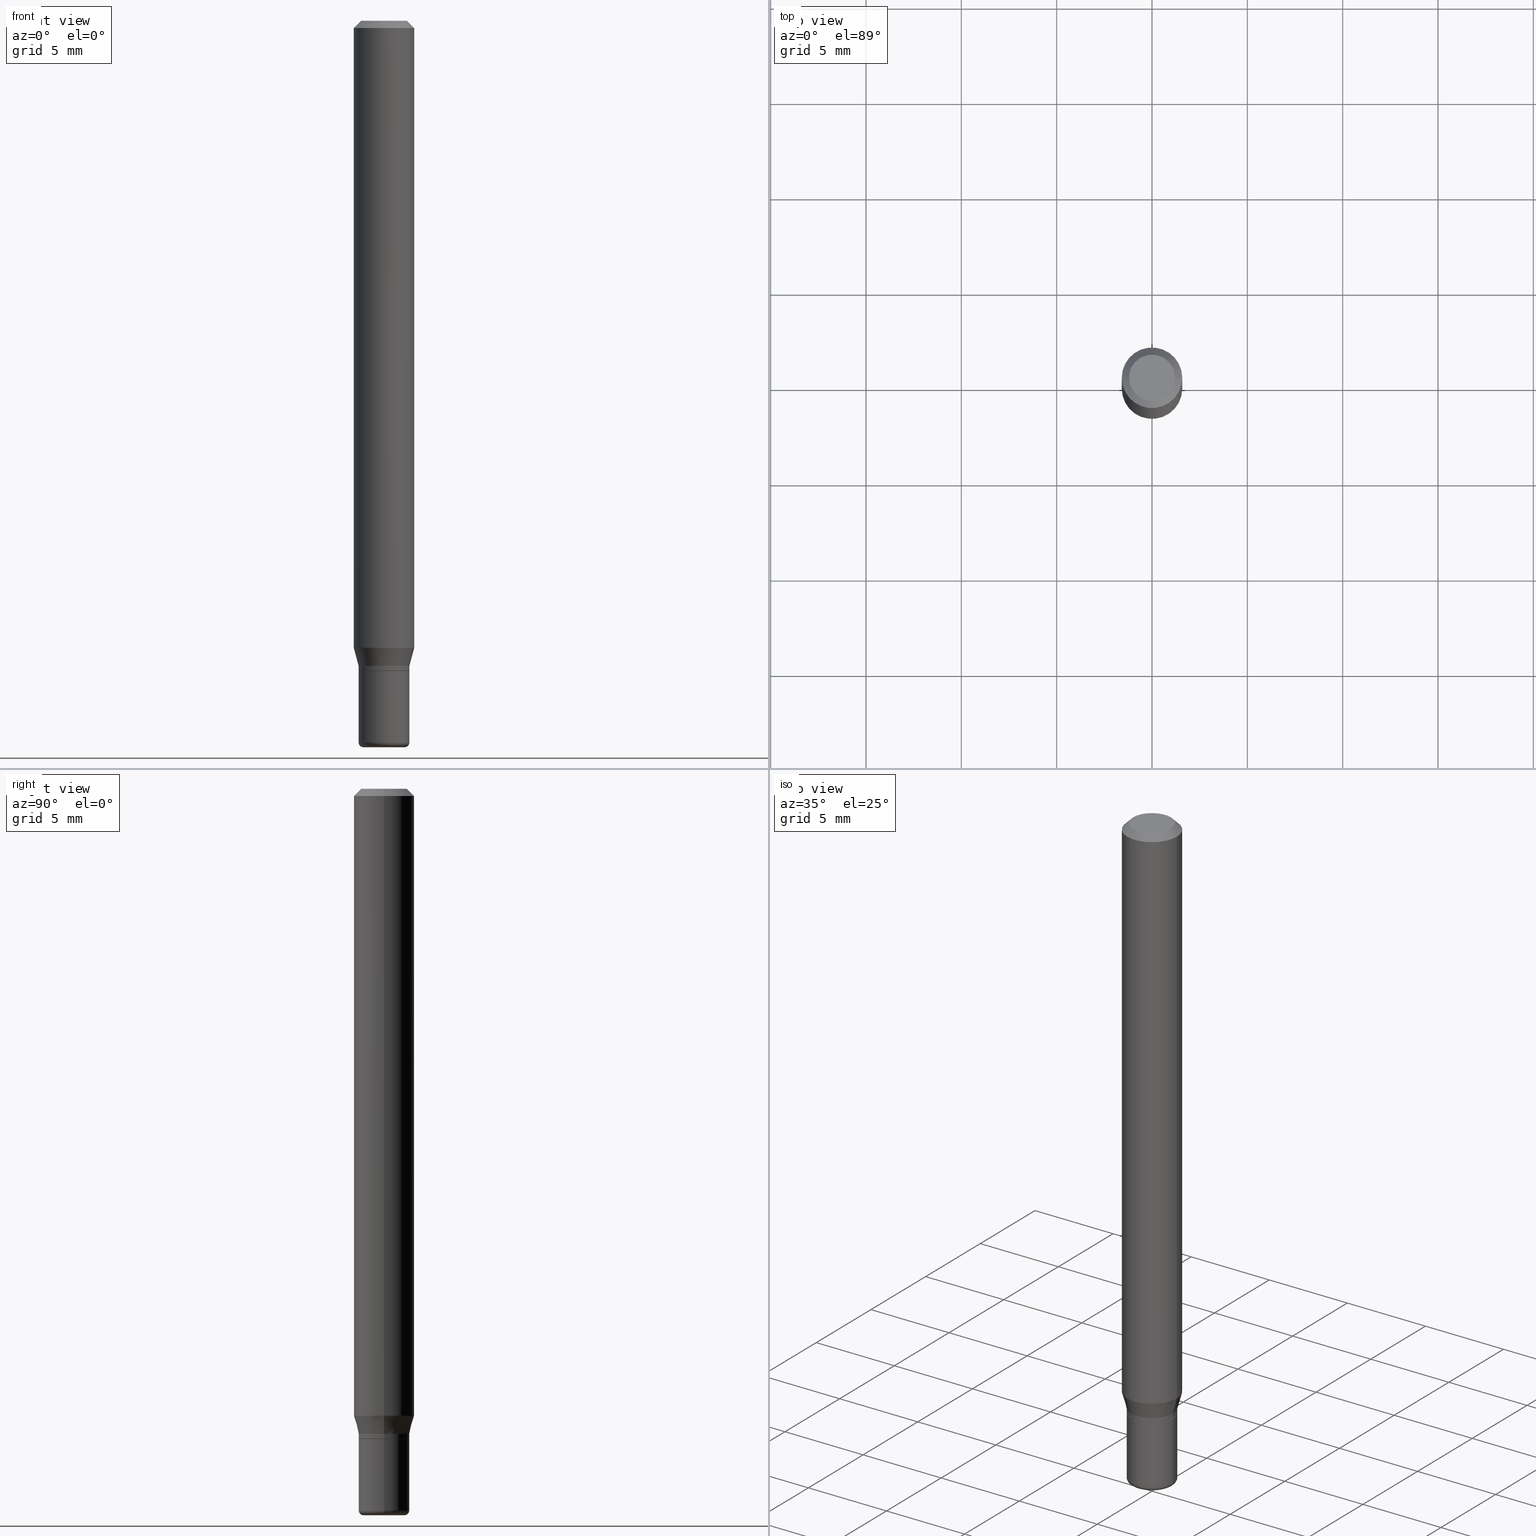
[diagram: canonical four-view strip — front | top / right | iso, engineering-drawing reading convention]
A machine part, canonical four-view strip (front | top / right | iso — engineering-drawing reading convention). The complete STEP part file that produces these views, byte-faithful:
ISO-10303-21;
HEADER;
FILE_DESCRIPTION (( 'STEP AP203' ),
    '1' );
FILE_NAME ('08744.STEP',
    '2024-02-29T20:45:33',
    ( '' ),
    ( '' ),
    'SwSTEP 2.0',
    'SolidWorks 2023',
    '' );
FILE_SCHEMA (( 'CONFIG_CONTROL_DESIGN' ));
ENDSEC;

DATA;
#1 = DIRECTION ( 'NONE',  ( -2.445468806185136597E-29, 3.491481338843145583E-15, 1.000000000000000000 ) ) ;
#2 = CIRCLE ( 'NONE', #40, 0.06250000000000000000 ) ;
#3 = VECTOR ( 'NONE', #63, 39.37007874015748143 ) ;
#4 = PRODUCT_DEFINITION_FORMATION_WITH_SPECIFIED_SOURCE ( 'ANY', '', #58, .NOT_KNOWN. ) ;
#5 = ORIENTED_EDGE ( 'NONE', *, *, #65, .F. ) ;
#6 = DIRECTION ( 'NONE',  ( 1.000000000000000000, -6.982962677686257244E-15, 0.000000000000000000 ) ) ;
#7 = ORIENTED_EDGE ( 'NONE', *, *, #73, .F. ) ;
#8 = CARTESIAN_POINT ( 'NONE',  ( -0.06250000000000000000, -4.076260075986595677E-15, -1.294679491924311421 ) ) ;
#9 = CARTESIAN_POINT ( 'NONE',  ( 3.257364449838602072E-29, -4.650653143339070101E-15, -1.332000000000000073 ) ) ;
#10 = VERTEX_POINT ( 'NONE', #420 ) ;
#11 = DIRECTION ( 'NONE',  ( 1.000000000000000000, -6.982962677686265922E-15, 4.876176775795935232E-29 ) ) ;
#12 = CARTESIAN_POINT ( 'NONE',  ( 3.668203209277704895E-29, -5.237222008264718177E-15, -1.500000000000000222 ) ) ;
#13 = VERTEX_POINT ( 'NONE', #346 ) ;
#14 = LINE ( 'NONE', #349, #327 ) ;
#15 = ORIENTED_EDGE ( 'NONE', *, *, #89, .T. ) ;
#16 = ORIENTED_EDGE ( 'NONE', *, *, #83, .F. ) ;
#17 = DIRECTION ( 'NONE',  ( -0.7071067811865479058, 2.468850131082261005E-15, -0.7071067811865471286 ) ) ;
#18 = CIRCLE ( 'NONE', #483, 0.05249999999999997030 ) ;
#19 = AXIS2_PLACEMENT_3D ( 'NONE', #323, #359, #239 ) ;
#20 = ORIENTED_EDGE ( 'NONE', *, *, #29, .F. ) ;
#21 =( GEOMETRIC_REPRESENTATION_CONTEXT ( 3 ) GLOBAL_UNCERTAINTY_ASSIGNED_CONTEXT ( ( #174 ) ) GLOBAL_UNIT_ASSIGNED_CONTEXT ( ( #105, #501, #100 ) ) REPRESENTATION_CONTEXT ( 'NONE', 'WORKASPACE' ) );
#22 = ORIENTED_EDGE ( 'NONE', *, *, #238, .T. ) ;
#23 = CARTESIAN_POINT ( 'NONE',  ( 0.000000000000000000, 0.000000000000000000, 0.000000000000000000 ) ) ;
#24 = DIRECTION ( 'NONE',  ( 1.000000000000000000, -6.982962677686266711E-15, 4.876176775795935793E-29 ) ) ;
#25 = EDGE_CURVE ( 'NONE', #369, #468, #230, .T. ) ;
#26 = DIRECTION ( 'NONE',  ( 1.000000000000000000, -6.982962677686261977E-15, 0.000000000000000000 ) ) ;
#27 = DIRECTION ( 'NONE',  ( 1.000000000000000000, -6.982962677686266711E-15, 4.852736867747365086E-29 ) ) ;
#28 = AXIS2_PLACEMENT_3D ( 'NONE', #341, #223, #6 ) ;
#29 = EDGE_CURVE ( 'NONE', #329, #210, #113, .T. ) ;
#30 = DIRECTION ( 'NONE',  ( -2.445468806185136597E-29, 3.491481338843145583E-15, 1.000000000000000000 ) ) ;
#31 = PERSON_AND_ORGANIZATION ( #59, #401 ) ;
#32 = DIRECTION ( 'NONE',  ( 1.000000000000000000, -6.982962677686269077E-15, 0.000000000000000000 ) ) ;
#33 = ORIENTED_EDGE ( 'NONE', *, *, #504, .T. ) ;
#34 = DIRECTION ( 'NONE',  ( 1.000000000000000000, -6.982962677686276966E-15, 0.000000000000000000 ) ) ;
#35 = DIRECTION ( 'NONE',  ( -2.445468806185136597E-29, 3.491481338843145583E-15, 1.000000000000000000 ) ) ;
#36 = DATE_AND_TIME ( #119, #209 ) ;
#37 = EDGE_CURVE ( 'NONE', #287, #166, #2, .T. ) ;
#38 = CYLINDRICAL_SURFACE ( 'NONE', #309, 0.05249999999999997030 ) ;
#39 = DIRECTION ( 'NONE',  ( 1.000000000000000000, -6.982962677686266711E-15, 4.876176775795935793E-29 ) ) ;
#40 = AXIS2_PLACEMENT_3D ( 'NONE', #370, #143, #44 ) ;
#41 = AXIS2_PLACEMENT_3D ( 'NONE', #195, #30, #312 ) ;
#42 = ORIENTED_EDGE ( 'NONE', *, *, #512, .F. ) ;
#43 = EDGE_LOOP ( 'NONE', ( #248, #15, #103, #447 ) ) ;
#44 = DIRECTION ( 'NONE',  ( 1.000000000000000000, -6.982962677686266711E-15, 0.000000000000000000 ) ) ;
#45 = EDGE_LOOP ( 'NONE', ( #22, #125 ) ) ;
#46 = PLANE ( 'NONE',  #286 ) ;
#47 = AXIS2_PLACEMENT_3D ( 'NONE', #101, #60, #249 ) ;
#48 = DIRECTION ( 'NONE',  ( -1.000000000000000000, 6.982962677686266711E-15, 0.000000000000000000 ) ) ;
#49 = AXIS2_PLACEMENT_3D ( 'NONE', #122, #290, #442 ) ;
#50 = ORIENTED_EDGE ( 'NONE', *, *, #165, .T. ) ;
#51 = APPROVAL_ROLE ( '' ) ;
#52 = EDGE_CURVE ( 'NONE', #244, #250, #297, .T. ) ;
#53 = LINE ( 'NONE', #487, #317 ) ;
#54 = ORIENTED_EDGE ( 'NONE', *, *, #123, .T. ) ;
#55 = ORIENTED_EDGE ( 'NONE', *, *, #61, .F. ) ;
#56 = ORIENTED_EDGE ( 'NONE', *, *, #52, .F. ) ;
#57 = PERSON_AND_ORGANIZATION_ROLE ( 'creator' ) ;
#58 = PRODUCT ( '08744', '08744', '', ( #497 ) ) ;
#59 = PERSON ( 'UNSPECIFIED', 'UNSPECIFIED', 'UNSPECIFIED', ('UNSPECIFIED'), ('UNSPECIFIED'), ('UNSPECIFIED') ) ;
#60 = DIRECTION ( 'NONE',  ( -2.445468806185136597E-29, 3.491481338843145583E-15, 1.000000000000000000 ) ) ;
#61 = EDGE_CURVE ( 'NONE', #93, #219, #494, .T. ) ;
#62 = TOROIDAL_SURFACE ( 'NONE', #433, 0.04249999999999998918, 0.009999999999999953371 ) ;
#63 = DIRECTION ( 'NONE',  ( 0.7071067811865479058, -7.319954787623257623E-15, -0.7071067811865471286 ) ) ;
#64 = ORIENTED_EDGE ( 'NONE', *, *, #441, .F. ) ;
#65 = EDGE_CURVE ( 'NONE', #411, #334, #326, .T. ) ;
#66 = CARTESIAN_POINT ( 'NONE',  ( 0.04249999999999998918, -5.533997922066385616E-15, -1.500000000000000222 ) ) ;
#67 = COORDINATED_UNIVERSAL_TIME_OFFSET ( 5, 0, .BEHIND. ) ;
#68 = CARTESIAN_POINT ( 'NONE',  ( 0.05249999999999999806, -5.053919237975452413E-15, -1.342500000000000249 ) ) ;
#69 = DIRECTION ( 'NONE',  ( 1.000000000000000000, -6.982962677686262766E-15, 0.000000000000000000 ) ) ;
#70 = AXIS2_PLACEMENT_3D ( 'NONE', #12, #461, #220 ) ;
#71 = AXIS2_PLACEMENT_3D ( 'NONE', #298, #379, #139 ) ;
#72 = CARTESIAN_POINT ( 'NONE',  ( -0.04249999999999998918, -4.882256802084455647E-15, -1.500000000000000222 ) ) ;
#73 = EDGE_CURVE ( 'NONE', #188, #258, #506, .T. ) ;
#74 = CYLINDRICAL_SURFACE ( 'NONE', #465, 0.06250000000000000000 ) ;
#75 = DIRECTION ( 'NONE',  ( -2.445468806185136877E-29, 3.491481338843145188E-15, 1.000000000000000000 ) ) ;
#76 = COORDINATED_UNIVERSAL_TIME_OFFSET ( 5, 0, .BEHIND. ) ;
#77 = AXIS2_PLACEMENT_3D ( 'NONE', #475, #1, #34 ) ;
#78 = CC_DESIGN_APPROVAL ( #360, ( #4 ) ) ;
#79 = ADVANCED_FACE ( 'NONE', ( #129 ), #407, .T. ) ;
#80 = DIRECTION ( 'NONE',  ( 2.445468806185136597E-29, -3.491481338843145583E-15, -1.000000000000000000 ) ) ;
#81 = FACE_OUTER_BOUND ( 'NONE', #324, .T. ) ;
#82 = EDGE_CURVE ( 'NONE', #93, #10, #180, .T. ) ;
#83 = EDGE_CURVE ( 'NONE', #13, #132, #221, .T. ) ;
#84 = AXIS2_PLACEMENT_3D ( 'NONE', #233, #157, #69 ) ;
#85 = LOCAL_TIME ( 15, 45, 33.00000000000000000, #311 ) ;
#86 = ORIENTED_EDGE ( 'NONE', *, *, #518, .T. ) ;
#87 = CARTESIAN_POINT ( 'NONE',  ( -0.05249999999999997030, 3.730349362740523866E-16, -2.582440922383824260E-30 ) ) ;
#88 = FACE_OUTER_BOUND ( 'NONE', #135, .T. ) ;
#89 = EDGE_CURVE ( 'NONE', #329, #244, #288, .T. ) ;
#90 = EDGE_LOOP ( 'NONE', ( #198, #445, #367, #452 ) ) ;
#91 = DIRECTION ( 'NONE',  ( 1.000000000000000000, -6.982962677686262766E-15, 0.000000000000000000 ) ) ;
#92 = APPLICATION_CONTEXT ( 'configuration controlled 3d designs of mechanical parts and assemblies' ) ;
#93 = VERTEX_POINT ( 'NONE', #245 ) ;
#94 = DATE_TIME_ROLE ( 'creation_date' ) ;
#95 = DIMENSIONAL_EXPONENTS ( 1.000000000000000000, 0.000000000000000000, 0.000000000000000000, 0.000000000000000000, 0.000000000000000000, 0.000000000000000000, 0.000000000000000000 ) ;
#96 = AXIS2_PLACEMENT_3D ( 'NONE', #141, #454, #459 ) ;
#97 = CARTESIAN_POINT ( 'NONE',  ( 3.283041872303546419E-29, -4.687313697396923253E-15, -1.342500000000000249 ) ) ;
#98 = CIRCLE ( 'NONE', #84, 0.06250000000000000000 ) ;
#99 = EDGE_LOOP ( 'NONE', ( #182, #130, #266, #55 ) ) ;
#100 =( NAMED_UNIT ( * ) SI_UNIT ( $, .STERADIAN. ) SOLID_ANGLE_UNIT ( ) );
#101 = CARTESIAN_POINT ( 'NONE',  ( 3.283041872303546419E-29, -4.687313697396923253E-15, -1.342500000000000249 ) ) ;
#102 = ORIENTED_EDGE ( 'NONE', *, *, #165, .F. ) ;
#103 = ORIENTED_EDGE ( 'NONE', *, *, #389, .F. ) ;
#104 = CARTESIAN_POINT ( 'NONE',  ( 3.668203209277632395E-31, -5.237222008264614861E-17, -0.01499999999999970281 ) ) ;
#105 =( CONVERSION_BASED_UNIT ( 'INCH', #458 ) LENGTH_UNIT ( ) NAMED_UNIT ( #95 ) );
#106 = FACE_OUTER_BOUND ( 'NONE', #415, .T. ) ;
#107 = VECTOR ( 'NONE', #484, 39.37007874015748143 ) ;
#108 = AXIS2_PLACEMENT_3D ( 'NONE', #390, #340, #26 ) ;
#109 = EDGE_CURVE ( 'NONE', #10, #93, #18, .T. ) ;
#110 = FACE_OUTER_BOUND ( 'NONE', #45, .T. ) ;
#111 = CARTESIAN_POINT ( 'NONE',  ( -6.680649051745406845E-45, 9.538196290434862081E-31, 2.731847993664263218E-16 ) ) ;
#112 = CARTESIAN_POINT ( 'NONE',  ( -0.05249999999999999806, -4.571775509862553934E-15, -1.342500000000000249 ) ) ;
#113 = CIRCLE ( 'NONE', #28, 0.05249999999999994255 ) ;
#114 = AXIS2_PLACEMENT_3D ( 'NONE', #265, #187, #350 ) ;
#115 = DIRECTION ( 'NONE',  ( 1.000000000000000000, -6.982962677686257244E-15, 4.883557194083109538E-29 ) ) ;
#116 = PERSON_AND_ORGANIZATION ( #59, #401 ) ;
#117 = CARTESIAN_POINT ( 'NONE',  ( 3.257364449838602072E-29, -4.650653143339070101E-15, -1.332000000000000073 ) ) ;
#118 = ADVANCED_FACE ( 'NONE', ( #211 ), #263, .T. ) ;
#119 = CALENDAR_DATE ( 2024, 29, 2 ) ;
#120 = DIRECTION ( 'NONE',  ( -2.445468806185136597E-29, 3.491481338843145583E-15, 1.000000000000000000 ) ) ;
#121 = VECTOR ( 'NONE', #470, 39.37007874015748143 ) ;
#122 = CARTESIAN_POINT ( 'NONE',  ( 3.257364449838602072E-29, -4.650653143339070101E-15, -1.332000000000000073 ) ) ;
#123 = EDGE_CURVE ( 'NONE', #334, #287, #53, .T. ) ;
#124 = CC_DESIGN_PERSON_AND_ORGANIZATION_ASSIGNMENT ( #201, #229, ( #142 ) ) ;
#125 = ORIENTED_EDGE ( 'NONE', *, *, #65, .T. ) ;
#126 = AXIS2_PLACEMENT_3D ( 'NONE', #466, #469, #194 ) ;
#127 = ORIENTED_EDGE ( 'NONE', *, *, #516, .F. ) ;
#128 = APPROVAL_PERSON_ORGANIZATION ( #278, #429, #193 ) ;
#129 = FACE_OUTER_BOUND ( 'NONE', #175, .T. ) ;
#130 = ORIENTED_EDGE ( 'NONE', *, *, #153, .T. ) ;
#131 = PLANE ( 'NONE',  #241 ) ;
#132 = VERTEX_POINT ( 'NONE', #292 ) ;
#133 = DIRECTION ( 'NONE',  ( -2.445468806185136597E-29, 3.491481338843145583E-15, 1.000000000000000000 ) ) ;
#134 = EDGE_CURVE ( 'NONE', #219, #369, #451, .T. ) ;
#135 = EDGE_LOOP ( 'NONE', ( #373, #413, #339, #328 ) ) ;
#136 = CYLINDRICAL_SURFACE ( 'NONE', #353, 0.05249999999999997030 ) ;
#137 = DIRECTION ( 'NONE',  ( 0.2588190451025217387, 1.565188264969619207E-15, 0.9659258262890679791 ) ) ;
#138 = ORIENTED_EDGE ( 'NONE', *, *, #61, .T. ) ;
#139 = DIRECTION ( 'NONE',  ( 1.000000000000000000, -6.982962677686266711E-15, 0.000000000000000000 ) ) ;
#140 = CC_DESIGN_PERSON_AND_ORGANIZATION_ASSIGNMENT ( #186, #308, ( #58 ) ) ;
#141 = CARTESIAN_POINT ( 'NONE',  ( -6.680649051745406845E-45, 9.538196290434862081E-31, 2.731847993664263218E-16 ) ) ;
#142 = SECURITY_CLASSIFICATION ( '', '', #397 ) ;
#143 = DIRECTION ( 'NONE',  ( -2.445468806185136597E-29, 3.491481338843145583E-15, 1.000000000000000000 ) ) ;
#144 = DATE_AND_TIME ( #347, #85 ) ;
#145 = DIRECTION ( 'NONE',  ( -0.2588190451025217387, 5.211531920934551042E-15, 0.9659258262890679791 ) ) ;
#146 =( LENGTH_UNIT ( ) NAMED_UNIT ( * ) SI_UNIT ( $, .METRE. ) );
#147 = CARTESIAN_POINT ( 'NONE',  ( 3.643748521215853910E-29, -5.202307194876288105E-15, -1.490000000000000213 ) ) ;
#148 = AXIS2_PLACEMENT_3D ( 'NONE', #9, #337, #172 ) ;
#149 = AXIS2_PLACEMENT_3D ( 'NONE', #235, #517, #162 ) ;
#150 = APPLICATION_PROTOCOL_DEFINITION ( 'international standard', 'config_control_design', 1994, #92 ) ;
#151 = ADVANCED_FACE ( 'NONE', ( #295 ), #169, .T. ) ;
#152 = DIRECTION ( 'NONE',  ( 1.000000000000000000, -6.982962677686261977E-15, 0.000000000000000000 ) ) ;
#153 = EDGE_CURVE ( 'NONE', #10, #313, #432, .T. ) ;
#154 = PERSON_AND_ORGANIZATION_ROLE ( 'design_supplier' ) ;
#155 = DIRECTION ( 'NONE',  ( -2.445468806185136597E-29, 3.491481338843145583E-15, 1.000000000000000000 ) ) ;
#156 = APPROVAL_STATUS ( 'not_yet_approved' ) ;
#157 = DIRECTION ( 'NONE',  ( -2.445468806185136597E-29, 3.491481338843145583E-15, 1.000000000000000000 ) ) ;
#158 = CONICAL_SURFACE ( 'NONE', #108, 0.05199999999999996986, 0.7853981633972775267 ) ;
#159 = CARTESIAN_POINT ( 'NONE',  ( 0.06250000000000000000, -4.956784453192050752E-15, -1.294679491924311421 ) ) ;
#160 = DIRECTION ( 'NONE',  ( -2.445468806185136597E-29, 3.491481338843145583E-15, 1.000000000000000000 ) ) ;
#161 = PERSON_AND_ORGANIZATION_ROLE ( 'creator' ) ;
#162 = DIRECTION ( 'NONE',  ( -1.000000000000000000, 7.105427357600958471E-15, 0.000000000000000000 ) ) ;
#163 = AXIS2_PLACEMENT_3D ( 'NONE', #450, #80, #336 ) ;
#164 = LOCAL_TIME ( 15, 45, 33.00000000000000000, #67 ) ;
#165 = EDGE_CURVE ( 'NONE', #313, #468, #505, .T. ) ;
#166 = VERTEX_POINT ( 'NONE', #307 ) ;
#167 = ORIENTED_EDGE ( 'NONE', *, *, #25, .F. ) ;
#168 = CARTESIAN_POINT ( 'NONE',  ( -0.04750000000000000749, 3.578768372314221353E-16, 2.731847993664239060E-16 ) ) ;
#169 = TOROIDAL_SURFACE ( 'NONE', #192, 0.04249999999999998918, 0.009999999999999953371 ) ;
#170 = VECTOR ( 'NONE', #270, 39.37007874015748143 ) ;
#171 = CC_DESIGN_APPROVAL ( #204, ( #471 ) ) ;
#172 = DIRECTION ( 'NONE',  ( 1.000000000000000000, -6.982962677686269866E-15, 0.000000000000000000 ) ) ;
#173 = DIRECTION ( 'NONE',  ( 1.000000000000000000, -6.982962677686265922E-15, 4.876176775795935793E-29 ) ) ;
#174 = UNCERTAINTY_MEASURE_WITH_UNIT (LENGTH_MEASURE( 1.000000000000000082E-05 ), #105, 'distance_accuracy_value', 'NONE');
#175 = EDGE_LOOP ( 'NONE', ( #127, #492, #54, #485 ) ) ;
#176 = ORIENTED_EDGE ( 'NONE', *, *, #306, .F. ) ;
#177 = DIRECTION ( 'NONE',  ( -2.445468806185136597E-29, 3.491481338843145583E-15, 1.000000000000000000 ) ) ;
#178 = DIRECTION ( 'NONE',  ( -2.445468806185136597E-29, 3.491481338843145583E-15, 1.000000000000000000 ) ) ;
#179 = CARTESIAN_POINT ( 'NONE',  ( 0.000000000000000000, 0.000000000000000000, 0.000000000000000000 ) ) ;
#180 = CIRCLE ( 'NONE', #372, 0.05249999999999997030 ) ;
#181 = VECTOR ( 'NONE', #145, 39.37007874015748854 ) ;
#182 = ORIENTED_EDGE ( 'NONE', *, *, #82, .T. ) ;
#183 = PERSON_AND_ORGANIZATION ( #59, #401 ) ;
#184 = CARTESIAN_POINT ( 'NONE',  ( 3.283041872303546419E-29, -4.687313697396923253E-15, -1.342500000000000249 ) ) ;
#185 = EDGE_CURVE ( 'NONE', #210, #250, #509, .T. ) ;
#186 = PERSON_AND_ORGANIZATION ( #59, #401 ) ;
#187 = DIRECTION ( 'NONE',  ( 2.438088387897960049E-29, -3.491481338843145188E-15, -1.000000000000000000 ) ) ;
#188 = VERTEX_POINT ( 'NONE', #66 ) ;
#189 = ADVANCED_FACE ( 'NONE', ( #395 ), #388, .T. ) ;
#190 = DIRECTION ( 'NONE',  ( 1.000000000000000000, -6.982962677686269866E-15, 0.000000000000000000 ) ) ;
#191 = CARTESIAN_POINT ( 'NONE',  ( 3.643748521215853910E-29, -5.202307194876288105E-15, -1.490000000000000213 ) ) ;
#192 = AXIS2_PLACEMENT_3D ( 'NONE', #147, #513, #115 ) ;
#193 = APPROVAL_ROLE ( '' ) ;
#194 = DIRECTION ( 'NONE',  ( -1.000000000000000000, 6.982962677686265922E-15, -4.876176775795935793E-29 ) ) ;
#195 = CARTESIAN_POINT ( 'NONE',  ( 0.000000000000000000, 0.000000000000000000, 0.000000000000000000 ) ) ;
#196 = ADVANCED_FACE ( 'NONE', ( #110 ), #427, .F. ) ;
#197 = COORDINATED_UNIVERSAL_TIME_OFFSET ( 5, 0, .BEHIND. ) ;
#198 = ORIENTED_EDGE ( 'NONE', *, *, #73, .T. ) ;
#199 = DIRECTION ( 'NONE',  ( -2.438088387897960049E-29, 3.491481338843145188E-15, 1.000000000000000000 ) ) ;
#200 = CIRCLE ( 'NONE', #408, 0.05199999999999996986 ) ;
#201 = PERSON_AND_ORGANIZATION ( #59, #401 ) ;
#202 = CARTESIAN_POINT ( 'NONE',  ( 0.000000000000000000, 0.000000000000000000, 0.000000000000000000 ) ) ;
#203 = DIRECTION ( 'NONE',  ( 1.000000000000000000, -6.982962677686261977E-15, 0.000000000000000000 ) ) ;
#204 = APPROVAL ( #464, 'UNSPECIFIED' ) ;
#205 = EDGE_CURVE ( 'NONE', #188, #210, #231, .T. ) ;
#206 = DIRECTION ( 'NONE',  ( -2.445468806185136597E-29, 3.491481338843145583E-15, 1.000000000000000000 ) ) ;
#207 = AXIS2_PLACEMENT_3D ( 'NONE', #498, #178, #91 ) ;
#208 = AXIS2_PLACEMENT_3D ( 'NONE', #333, #120, #489 ) ;
#209 = LOCAL_TIME ( 15, 45, 33.00000000000000000, #76 ) ;
#210 = VERTEX_POINT ( 'NONE', #435 ) ;
#211 = FACE_OUTER_BOUND ( 'NONE', #302, .T. ) ;
#212 = EDGE_LOOP ( 'NONE', ( #227, #232 ) ) ;
#213 = CARTESIAN_POINT ( 'NONE',  ( 3.582686580359766038E-29, -5.359686688179453325E-15, -1.500000000000000222 ) ) ;
#214 = CLOSED_SHELL ( 'NONE', ( #151, #338, #320, #365, #267, #356 ) ) ;
#215 = CIRCLE ( 'NONE', #149, 0.009999999999999953371 ) ;
#216 = AXIS2_PLACEMENT_3D ( 'NONE', #179, #344, #305 ) ;
#217 = DIRECTION ( 'NONE',  ( -2.445468806185136597E-29, 3.491481338843145583E-15, 1.000000000000000000 ) ) ;
#218 = ORIENTED_EDGE ( 'NONE', *, *, #404, .F. ) ;
#219 = VERTEX_POINT ( 'NONE', #431 ) ;
#220 = DIRECTION ( 'NONE',  ( 1.000000000000000000, -6.982962677686276966E-15, 0.000000000000000000 ) ) ;
#221 = CIRCLE ( 'NONE', #47, 0.05199999999999996986 ) ;
#222 = CIRCLE ( 'NONE', #77, 0.04249999999999998918 ) ;
#223 = DIRECTION ( 'NONE',  ( -2.445468806185136597E-29, 3.491481338843145583E-15, 1.000000000000000000 ) ) ;
#224 = PRODUCT_RELATED_PRODUCT_CATEGORY ( 'detail', '', ( #58 ) ) ;
#225 = DIRECTION ( 'NONE',  ( -2.445468806185136597E-29, 3.491481338843145583E-15, 1.000000000000000000 ) ) ;
#226 = DATE_AND_TIME ( #303, #164 ) ;
#227 = ORIENTED_EDGE ( 'NONE', *, *, #389, .T. ) ;
#228 = CARTESIAN_POINT ( 'NONE',  ( -0.06250000000000000000, -1.842271543109589479E-15, -0.01499999999999970281 ) ) ;
#229 = PERSON_AND_ORGANIZATION_ROLE ( 'classification_officer' ) ;
#230 = CIRCLE ( 'NONE', #207, 0.06250000000000000000 ) ;
#231 = CIRCLE ( 'NONE', #332, 0.009999999999999953371 ) ;
#232 = ORIENTED_EDGE ( 'NONE', *, *, #52, .T. ) ;
#233 = CARTESIAN_POINT ( 'NONE',  ( 3.166098311508524908E-29, -4.520349285836658294E-15, -1.294679491924311421 ) ) ;
#234 = FACE_OUTER_BOUND ( 'NONE', #255, .T. ) ;
#235 = CARTESIAN_POINT ( 'NONE',  ( -0.04249999999999998918, -4.900326532178244864E-15, -1.490000000000000213 ) ) ;
#236 = VECTOR ( 'NONE', #75, 39.37007874015748143 ) ;
#237 = DIRECTION ( 'NONE',  ( -2.438088387897960049E-29, 3.491481338843145188E-15, 1.000000000000000000 ) ) ;
#238 = EDGE_CURVE ( 'NONE', #334, #411, #426, .T. ) ;
#239 = DIRECTION ( 'NONE',  ( 1.000000000000000000, -6.982962677686268288E-15, 0.000000000000000000 ) ) ;
#240 = AXIS2_PLACEMENT_3D ( 'NONE', #104, #448, #48 ) ;
#241 = AXIS2_PLACEMENT_3D ( 'NONE', #363, #237, #486 ) ;
#242 = LOCAL_TIME ( 15, 45, 33.00000000000000000, #474 ) ;
#243 = EDGE_LOOP ( 'NONE', ( #284, #482, #381, #495 ) ) ;
#244 = VERTEX_POINT ( 'NONE', #112 ) ;
#245 = CARTESIAN_POINT ( 'NONE',  ( 0.05249999999999997030, -5.052173497306030121E-15, -1.342000000000000082 ) ) ;
#246 = ORIENTED_EDGE ( 'NONE', *, *, #512, .T. ) ;
#247 = FACE_OUTER_BOUND ( 'NONE', #43, .T. ) ;
#248 = ORIENTED_EDGE ( 'NONE', *, *, #362, .T. ) ;
#249 = DIRECTION ( 'NONE',  ( 1.000000000000000000, -6.982962677686261977E-15, 0.000000000000000000 ) ) ;
#250 = VERTEX_POINT ( 'NONE', #68 ) ;
#251 = PERSON_AND_ORGANIZATION ( #59, #401 ) ;
#252 = CONICAL_SURFACE ( 'NONE', #282, 0.05199999999999996986, 0.7853981633972775267 ) ;
#253 = APPROVAL_PERSON_ORGANIZATION ( #251, #360, #51 ) ;
#254 = DIRECTION ( 'NONE',  ( -2.445468806185136877E-29, 3.491481338843145188E-15, 1.000000000000000000 ) ) ;
#255 = EDGE_LOOP ( 'NONE', ( #378, #383, #291, #56 ) ) ;
#256 = CARTESIAN_POINT ( 'NONE',  ( 0.05199999999999996986, -5.050427756636608617E-15, -1.342500000000000249 ) ) ;
#257 = ORIENTED_EDGE ( 'NONE', *, *, #272, .F. ) ;
#258 = VERTEX_POINT ( 'NONE', #72 ) ;
#259 = APPROVAL_ROLE ( '' ) ;
#260 = EDGE_LOOP ( 'NONE', ( #16, #257 ) ) ;
#261 = CARTESIAN_POINT ( 'NONE',  ( 3.281819137900453057E-29, -4.685567956727500961E-15, -1.342000000000000082 ) ) ;
#262 = CARTESIAN_POINT ( 'NONE',  ( 0.06250000000000000000, -4.811533449433669144E-16, -0.01499999999999970281 ) ) ;
#263 = CONICAL_SURFACE ( 'NONE', #148, 0.05249999999999998418, 0.2617993877991504625 ) ;
#264 = CIRCLE ( 'NONE', #208, 0.05249999999999994255 ) ;
#265 = CARTESIAN_POINT ( 'NONE',  ( 3.666055405785617499E-16, 0.05249999999999530736, -1.342500000000000471 ) ) ;
#266 = ORIENTED_EDGE ( 'NONE', *, *, #444, .F. ) ;
#267 = ADVANCED_FACE ( 'NONE', ( #355 ), #62, .T. ) ;
#268 = CARTESIAN_POINT ( 'NONE',  ( 0.04249999999999998918, -5.499083108677954756E-15, -1.490000000000000213 ) ) ;
#269 = CARTESIAN_POINT ( 'NONE',  ( -0.05249999999999998418, -4.176939141525806622E-15, -1.332000000000000073 ) ) ;
#270 = DIRECTION ( 'NONE',  ( -2.445468806185136877E-29, 3.491481338843145188E-15, 1.000000000000000000 ) ) ;
#271 = CIRCLE ( 'NONE', #49, 0.05249999999999998418 ) ;
#272 = EDGE_CURVE ( 'NONE', #132, #13, #200, .T. ) ;
#273 = EDGE_LOOP ( 'NONE', ( #102, #246, #488, #176 ) ) ;
#274 = DIRECTION ( 'NONE',  ( 1.000000000000000000, -6.982962677686257244E-15, 4.883557194083109538E-29 ) ) ;
#275 = ADVANCED_BREP_SHAPE_REPRESENTATION ( '08744', ( #321, #316, #216 ), #21 ) ;
#276 = APPROVAL_DATE_TIME ( #36, #429 ) ;
#277 = DIRECTION ( 'NONE',  ( 1.000000000000000000, -6.982962677686269866E-15, 0.000000000000000000 ) ) ;
#278 = PERSON_AND_ORGANIZATION ( #59, #401 ) ;
#279 = ADVANCED_FACE ( 'NONE', ( #106 ), #357, .T. ) ;
#280 = CARTESIAN_POINT ( 'NONE',  ( -0.05199999999999996986, -4.317831474801671617E-15, -1.342500000000000249 ) ) ;
#281 = ADVANCED_FACE ( 'NONE', ( #510 ), #74, .T. ) ;
#282 = AXIS2_PLACEMENT_3D ( 'NONE', #400, #160, #203 ) ;
#283 = DIRECTION ( 'NONE',  ( -0.7071067811864267805, 7.493145998869918709E-15, 0.7071067811866682540 ) ) ;
#284 = ORIENTED_EDGE ( 'NONE', *, *, #430, .F. ) ;
#285 = ORIENTED_EDGE ( 'NONE', *, *, #430, .T. ) ;
#286 = AXIS2_PLACEMENT_3D ( 'NONE', #213, #199, #173 ) ;
#287 = VERTEX_POINT ( 'NONE', #228 ) ;
#288 = LINE ( 'NONE', #87, #472 ) ;
#289 = ORIENTED_EDGE ( 'NONE', *, *, #109, .T. ) ;
#290 = DIRECTION ( 'NONE',  ( -2.445468806185136597E-29, 3.491481338843145583E-15, 1.000000000000000000 ) ) ;
#291 = ORIENTED_EDGE ( 'NONE', *, *, #185, .T. ) ;
#292 = CARTESIAN_POINT ( 'NONE',  ( -0.05199999999999996986, -4.315182247627560416E-15, -1.342500000000000249 ) ) ;
#293 = ORIENTED_EDGE ( 'NONE', *, *, #417, .F. ) ;
#294 = FACE_OUTER_BOUND ( 'NONE', #260, .T. ) ;
#295 = FACE_OUTER_BOUND ( 'NONE', #90, .T. ) ;
#296 = ORIENTED_EDGE ( 'NONE', *, *, #123, .F. ) ;
#297 = CIRCLE ( 'NONE', #343, 0.05249999999999999806 ) ;
#298 = CARTESIAN_POINT ( 'NONE',  ( 3.668203209277632395E-31, -5.237222008264614861E-17, -0.01499999999999970281 ) ) ;
#299 = CIRCLE ( 'NONE', #71, 0.06250000000000000000 ) ;
#300 = CC_DESIGN_APPROVAL ( #429, ( #142 ) ) ;
#301 = DIRECTION ( 'NONE',  ( 1.000000000000000000, -6.982962677686271444E-15, 0.000000000000000000 ) ) ;
#302 = EDGE_LOOP ( 'NONE', ( #380, #50, #167, #377 ) ) ;
#303 = CALENDAR_DATE ( 2024, 29, 2 ) ;
#304 = DIRECTION ( 'NONE',  ( 1.000000000000000000, -6.982962677686268288E-15, 0.000000000000000000 ) ) ;
#305 = DIRECTION ( 'NONE',  ( 1.000000000000000000, 0.000000000000000000, 0.000000000000000000 ) ) ;
#306 = EDGE_CURVE ( 'NONE', #468, #369, #98, .T. ) ;
#307 = CARTESIAN_POINT ( 'NONE',  ( 0.06250000000000000000, -4.888073874380378612E-16, -0.01499999999999970281 ) ) ;
#308 = PERSON_AND_ORGANIZATION_ROLE ( 'design_owner' ) ;
#309 = AXIS2_PLACEMENT_3D ( 'NONE', #416, #477, #11 ) ;
#310 = CARTESIAN_POINT ( 'NONE',  ( -0.05249999999999998418, -4.277618207065018355E-15, -1.332000000000000073 ) ) ;
#311 = COORDINATED_UNIVERSAL_TIME_OFFSET ( 5, 0, .BEHIND. ) ;
#312 = DIRECTION ( 'NONE',  ( 1.000000000000000000, -6.982962677686265922E-15, 4.876176775795935793E-29 ) ) ;
#313 = VERTEX_POINT ( 'NONE', #269 ) ;
#314 = CC_DESIGN_DATE_AND_TIME_ASSIGNMENT ( #144, #94, ( #471 ) ) ;
#315 = DIRECTION ( 'NONE',  ( -6.982962677686266711E-15, -1.000000000000000000, 3.491481338843145583E-15 ) ) ;
#316 = MANIFOLD_SOLID_BREP ( 'Body-Move/Copy2[2]', #352 ) ;
#317 = VECTOR ( 'NONE', #17, 39.37007874015748143 ) ;
#318 = CARTESIAN_POINT ( 'NONE',  ( 0.05249999999999997030, -3.666055405785287656E-16, 2.559992807292864610E-30 ) ) ;
#319 = CONICAL_SURFACE ( 'NONE', #508, 0.05249999999999998418, 0.2617993877991504625 ) ;
#320 = ADVANCED_FACE ( 'NONE', ( #386 ), #502, .F. ) ;
#321 = MANIFOLD_SOLID_BREP ( 'Body-Move/Copy2[1]', #214 ) ;
#322 = CYLINDRICAL_SURFACE ( 'NONE', #446, 0.06250000000000000000 ) ;
#323 = CARTESIAN_POINT ( 'NONE',  ( 3.283041872303546419E-29, -4.687313697396923253E-15, -1.342500000000000249 ) ) ;
#324 = EDGE_LOOP ( 'NONE', ( #7, #293 ) ) ;
#325 = CARTESIAN_POINT ( 'NONE',  ( 0.04750000000000000749, -4.035134999187568762E-16, 2.731847993664288856E-16 ) ) ;
#326 = CIRCLE ( 'NONE', #96, 0.04750000000000000749 ) ;
#327 = VECTOR ( 'NONE', #462, 39.37007874015748143 ) ;
#328 = ORIENTED_EDGE ( 'NONE', *, *, #504, .F. ) ;
#329 = VERTEX_POINT ( 'NONE', #515 ) ;
#330 = CARTESIAN_POINT ( 'NONE',  ( 0.05249999999999997724, -3.666055405785288149E-16, 2.559992807292865310E-30 ) ) ;
#331 = ORIENTED_EDGE ( 'NONE', *, *, #205, .T. ) ;
#332 = AXIS2_PLACEMENT_3D ( 'NONE', #268, #315, #32 ) ;
#333 = CARTESIAN_POINT ( 'NONE',  ( 3.643748521215853910E-29, -5.202307194876288105E-15, -1.490000000000000213 ) ) ;
#334 = VERTEX_POINT ( 'NONE', #168 ) ;
#335 = ORIENTED_EDGE ( 'NONE', *, *, #109, .F. ) ;
#336 = DIRECTION ( 'NONE',  ( -1.000000000000000000, 6.982962677686266711E-15, 0.000000000000000000 ) ) ;
#337 = DIRECTION ( 'NONE',  ( -2.445468806185136597E-29, 3.491481338843145583E-15, 1.000000000000000000 ) ) ;
#338 = ADVANCED_FACE ( 'NONE', ( #247 ), #38, .T. ) ;
#339 = ORIENTED_EDGE ( 'NONE', *, *, #82, .F. ) ;
#340 = DIRECTION ( 'NONE',  ( -2.445468806185136597E-29, 3.491481338843145583E-15, 1.000000000000000000 ) ) ;
#341 = CARTESIAN_POINT ( 'NONE',  ( 3.643748521215853910E-29, -5.202307194876288105E-15, -1.490000000000000213 ) ) ;
#342 = EDGE_LOOP ( 'NONE', ( #64, #422, #331, #20 ) ) ;
#343 = AXIS2_PLACEMENT_3D ( 'NONE', #97, #133, #304 ) ;
#344 = DIRECTION ( 'NONE',  ( 0.000000000000000000, 0.000000000000000000, 1.000000000000000000 ) ) ;
#345 = AXIS2_PLACEMENT_3D ( 'NONE', #424, #177, #190 ) ;
#346 = CARTESIAN_POINT ( 'NONE',  ( 0.05199999999999996986, -5.050427756636608617E-15, -1.342500000000000249 ) ) ;
#347 = CALENDAR_DATE ( 2024, 29, 2 ) ;
#348 = DIRECTION ( 'NONE',  ( -2.445468806185136597E-29, 3.491481338843145583E-15, 1.000000000000000000 ) ) ;
#349 = CARTESIAN_POINT ( 'NONE',  ( 0.06250000000000000000, -4.364351673553916694E-16, 3.047610484872459871E-30 ) ) ;
#350 = DIRECTION ( 'NONE',  ( -1.000000000000000000, 6.982962677686265922E-15, -4.876176775795935793E-29 ) ) ;
#351 = APPROVAL_DATE_TIME ( #226, #204 ) ;
#352 = CLOSED_SHELL ( 'NONE', ( #189, #480, #368, #410, #118, #438, #281, #79, #196, #376, #443, #279 ) ) ;
#353 = AXIS2_PLACEMENT_3D ( 'NONE', #202, #206, #440 ) ;
#354 = CARTESIAN_POINT ( 'NONE',  ( -0.05249999999999997724, 3.730349362740524359E-16, -2.582440922383824611E-30 ) ) ;
#355 = FACE_OUTER_BOUND ( 'NONE', #342, .T. ) ;
#356 = ADVANCED_FACE ( 'NONE', ( #81 ), #46, .F. ) ;
#357 = CYLINDRICAL_SURFACE ( 'NONE', #514, 0.05249999999999997724 ) ;
#358 = DATE_TIME_ROLE ( 'classification_date' ) ;
#359 = DIRECTION ( 'NONE',  ( -2.445468806185136597E-29, 3.491481338843145583E-15, 1.000000000000000000 ) ) ;
#360 = APPROVAL ( #419, 'UNSPECIFIED' ) ;
#361 = FACE_OUTER_BOUND ( 'NONE', #273, .T. ) ;
#362 = EDGE_CURVE ( 'NONE', #210, #329, #264, .T. ) ;
#363 = CARTESIAN_POINT ( 'NONE',  ( 3.283041872303546419E-29, -4.687313697396923253E-15, -1.342500000000000249 ) ) ;
#364 = APPLICATION_CONTEXT ( 'configuration controlled 3d designs of mechanical parts and assemblies' ) ;
#365 = ADVANCED_FACE ( 'NONE', ( #234 ), #136, .T. ) ;
#366 = DIRECTION ( 'NONE',  ( -2.445468806185136597E-29, 3.491481338843145583E-15, 1.000000000000000000 ) ) ;
#367 = ORIENTED_EDGE ( 'NONE', *, *, #362, .F. ) ;
#368 = ADVANCED_FACE ( 'NONE', ( #375 ), #374, .T. ) ;
#369 = VERTEX_POINT ( 'NONE', #159 ) ;
#370 = CARTESIAN_POINT ( 'NONE',  ( 3.668203209277632395E-31, -5.237222008264614861E-17, -0.01499999999999970281 ) ) ;
#371 = CC_DESIGN_PERSON_AND_ORGANIZATION_ASSIGNMENT ( #116, #154, ( #4 ) ) ;
#372 = AXIS2_PLACEMENT_3D ( 'NONE', #261, #425, #301 ) ;
#373 = ORIENTED_EDGE ( 'NONE', *, *, #83, .T. ) ;
#374 = CONICAL_SURFACE ( 'NONE', #163, 0.06250000000000000000, 0.7853981633974488341 ) ;
#375 = FACE_OUTER_BOUND ( 'NONE', #481, .T. ) ;
#376 = ADVANCED_FACE ( 'NONE', ( #294 ), #131, .F. ) ;
#377 = ORIENTED_EDGE ( 'NONE', *, *, #134, .F. ) ;
#378 = ORIENTED_EDGE ( 'NONE', *, *, #89, .F. ) ;
#379 = DIRECTION ( 'NONE',  ( -2.445468806185136597E-29, 3.491481338843145583E-15, 1.000000000000000000 ) ) ;
#380 = ORIENTED_EDGE ( 'NONE', *, *, #444, .T. ) ;
#381 = ORIENTED_EDGE ( 'NONE', *, *, #499, .T. ) ;
#382 = DIRECTION ( 'NONE',  ( 1.000000000000000000, -6.982962677686271444E-15, 0.000000000000000000 ) ) ;
#383 = ORIENTED_EDGE ( 'NONE', *, *, #29, .T. ) ;
#384 = CC_DESIGN_SECURITY_CLASSIFICATION ( #142, ( #4 ) ) ;
#385 = CC_DESIGN_DATE_AND_TIME_ASSIGNMENT ( #402, #358, ( #142 ) ) ;
#386 = FACE_OUTER_BOUND ( 'NONE', #212, .T. ) ;
#387 = APPLICATION_PROTOCOL_DEFINITION ( 'international standard', 'config_control_design', 1994, #364 ) ;
#388 = CYLINDRICAL_SURFACE ( 'NONE', #41, 0.05249999999999997724 ) ;
#389 = EDGE_CURVE ( 'NONE', #250, #244, #479, .T. ) ;
#390 = CARTESIAN_POINT ( 'NONE',  ( 3.283041872303546419E-29, -4.687313697396923253E-15, -1.342500000000000249 ) ) ;
#391 = ORIENTED_EDGE ( 'NONE', *, *, #499, .F. ) ;
#392 = DIRECTION ( 'NONE',  ( -2.445468806185136597E-29, 3.491481338843145583E-15, 1.000000000000000000 ) ) ;
#393 = CALENDAR_DATE ( 2024, 29, 2 ) ;
#394 = VECTOR ( 'NONE', #283, 39.37007874015748143 ) ;
#395 = FACE_OUTER_BOUND ( 'NONE', #99, .T. ) ;
#396 = CARTESIAN_POINT ( 'NONE',  ( 0.000000000000000000, 0.000000000000000000, 0.000000000000000000 ) ) ;
#397 = SECURITY_CLASSIFICATION_LEVEL ( 'unclassified' ) ;
#398 = FACE_OUTER_BOUND ( 'NONE', #423, .T. ) ;
#399 = VECTOR ( 'NONE', #137, 39.37007874015748854 ) ;
#400 = CARTESIAN_POINT ( 'NONE',  ( 3.283041872303546419E-29, -4.687313697396923253E-15, -1.342500000000000249 ) ) ;
#401 = ORGANIZATION ( 'UNSPECIFIED', 'UNSPECIFIED', '' ) ;
#402 = DATE_AND_TIME ( #393, #242 ) ;
#403 = CARTESIAN_POINT ( 'NONE',  ( -0.06250000000000000000, 4.440892098500626162E-16, -3.074334431409316114E-30 ) ) ;
#404 = EDGE_CURVE ( 'NONE', #132, #10, #453, .T. ) ;
#405 = CARTESIAN_POINT ( 'NONE',  ( 0.000000000000000000, 0.000000000000000000, 0.000000000000000000 ) ) ;
#406 = CC_DESIGN_PERSON_AND_ORGANIZATION_ASSIGNMENT ( #507, #57, ( #471 ) ) ;
#407 = CONICAL_SURFACE ( 'NONE', #240, 0.06250000000000000000, 0.7853981633974488341 ) ;
#408 = AXIS2_PLACEMENT_3D ( 'NONE', #184, #225, #152 ) ;
#409 = ORIENTED_EDGE ( 'NONE', *, *, #518, .F. ) ;
#410 = ADVANCED_FACE ( 'NONE', ( #398 ), #322, .T. ) ;
#411 = VERTEX_POINT ( 'NONE', #325 ) ;
#412 = CC_DESIGN_PERSON_AND_ORGANIZATION_ASSIGNMENT ( #31, #161, ( #4 ) ) ;
#413 = ORIENTED_EDGE ( 'NONE', *, *, #404, .T. ) ;
#414 = CARTESIAN_POINT ( 'NONE',  ( 3.281819137900453057E-29, -4.685567956727500961E-15, -1.342000000000000082 ) ) ;
#415 = EDGE_LOOP ( 'NONE', ( #456, #289, #138, #42 ) ) ;
#416 = CARTESIAN_POINT ( 'NONE',  ( 0.000000000000000000, 0.000000000000000000, 0.000000000000000000 ) ) ;
#417 = EDGE_CURVE ( 'NONE', #258, #188, #222, .T. ) ;
#418 = EDGE_LOOP ( 'NONE', ( #218, #421, #33, #335 ) ) ;
#419 = APPROVAL_STATUS ( 'not_yet_approved' ) ;
#420 = CARTESIAN_POINT ( 'NONE',  ( -0.05249999999999997030, -4.312533020453449215E-15, -1.342000000000000082 ) ) ;
#421 = ORIENTED_EDGE ( 'NONE', *, *, #272, .T. ) ;
#422 = ORIENTED_EDGE ( 'NONE', *, *, #417, .T. ) ;
#423 = EDGE_LOOP ( 'NONE', ( #449, #285, #409, #391 ) ) ;
#424 = CARTESIAN_POINT ( 'NONE',  ( 3.257364449838602072E-29, -4.650653143339070101E-15, -1.332000000000000073 ) ) ;
#425 = DIRECTION ( 'NONE',  ( -2.445468806185136597E-29, 3.491481338843145583E-15, 1.000000000000000000 ) ) ;
#426 = CIRCLE ( 'NONE', #473, 0.04750000000000000749 ) ;
#427 = PLANE ( 'NONE',  #126 ) ;
#428 = ORIENTED_EDGE ( 'NONE', *, *, #516, .T. ) ;
#429 = APPROVAL ( #156, 'UNSPECIFIED' ) ;
#430 = EDGE_CURVE ( 'NONE', #468, #287, #439, .T. ) ;
#431 = CARTESIAN_POINT ( 'NONE',  ( 0.05249999999999998418, -5.017258683917599261E-15, -1.332000000000000073 ) ) ;
#432 = LINE ( 'NONE', #354, #170 ) ;
#433 = AXIS2_PLACEMENT_3D ( 'NONE', #191, #463, #274 ) ;
#434 = LOCAL_TIME ( 15, 45, 33.00000000000000000, #197 ) ;
#435 = CARTESIAN_POINT ( 'NONE',  ( 0.05249999999999994255, -5.568912735454815688E-15, -1.490000000000000213 ) ) ;
#436 = DIRECTION ( 'NONE',  ( 1.000000000000000000, -6.982962677686265922E-15, 4.876176775795935793E-29 ) ) ;
#437 = SHAPE_DEFINITION_REPRESENTATION ( #500, #275 ) ;
#438 = ADVANCED_FACE ( 'NONE', ( #361 ), #319, .T. ) ;
#439 = LINE ( 'NONE', #403, #236 ) ;
#440 = DIRECTION ( 'NONE',  ( 1.000000000000000000, -6.982962677686265922E-15, 4.876176775795935232E-29 ) ) ;
#441 = EDGE_CURVE ( 'NONE', #258, #329, #215, .T. ) ;
#442 = DIRECTION ( 'NONE',  ( 1.000000000000000000, -6.982962677686269866E-15, 0.000000000000000000 ) ) ;
#443 = ADVANCED_FACE ( 'NONE', ( #478 ), #252, .T. ) ;
#444 = EDGE_CURVE ( 'NONE', #219, #313, #271, .T. ) ;
#445 = ORIENTED_EDGE ( 'NONE', *, *, #441, .T. ) ;
#446 = AXIS2_PLACEMENT_3D ( 'NONE', #405, #35, #39 ) ;
#447 = ORIENTED_EDGE ( 'NONE', *, *, #185, .F. ) ;
#448 = DIRECTION ( 'NONE',  ( 2.445468806185136597E-29, -3.491481338843145583E-15, -1.000000000000000000 ) ) ;
#449 = ORIENTED_EDGE ( 'NONE', *, *, #25, .T. ) ;
#450 = CARTESIAN_POINT ( 'NONE',  ( 3.668203209277632395E-31, -5.237222008264614861E-17, -0.01499999999999970281 ) ) ;
#451 = LINE ( 'NONE', #491, #399 ) ;
#452 = ORIENTED_EDGE ( 'NONE', *, *, #205, .F. ) ;
#453 = LINE ( 'NONE', #280, #394 ) ;
#454 = DIRECTION ( 'NONE',  ( -2.445468806185136597E-29, 3.491481338843145583E-15, 1.000000000000000000 ) ) ;
#455 = CIRCLE ( 'NONE', #345, 0.05249999999999998418 ) ;
#456 = ORIENTED_EDGE ( 'NONE', *, *, #153, .F. ) ;
#457 = VECTOR ( 'NONE', #460, 39.37007874015748143 ) ;
#458 = LENGTH_MEASURE_WITH_UNIT ( LENGTH_MEASURE( 0.02539999999999999897 ), #146 );
#459 = DIRECTION ( 'NONE',  ( 1.000000000000000000, -6.982962677686266711E-15, 4.852736867747365086E-29 ) ) ;
#460 = DIRECTION ( 'NONE',  ( 0.7071067811864267805, -2.468850131080992517E-15, 0.7071067811866682540 ) ) ;
#461 = DIRECTION ( 'NONE',  ( -2.445468806185136597E-29, 3.491481338843145583E-15, 1.000000000000000000 ) ) ;
#462 = DIRECTION ( 'NONE',  ( -2.445468806185136877E-29, 3.491481338843145188E-15, 1.000000000000000000 ) ) ;
#463 = DIRECTION ( 'NONE',  ( -2.445468806185136597E-29, 3.491481338843145583E-15, 1.000000000000000000 ) ) ;
#464 = APPROVAL_STATUS ( 'not_yet_approved' ) ;
#465 = AXIS2_PLACEMENT_3D ( 'NONE', #23, #155, #24 ) ;
#466 = CARTESIAN_POINT ( 'NONE',  ( 3.316907271900976589E-16, 0.04750000000000000749, -2.925296391183627249E-17 ) ) ;
#467 = CALENDAR_DATE ( 2024, 29, 2 ) ;
#468 = VERTEX_POINT ( 'NONE', #8 ) ;
#469 = DIRECTION ( 'NONE',  ( 2.438088387897960049E-29, -3.491481338843145188E-15, -1.000000000000000000 ) ) ;
#470 = DIRECTION ( 'NONE',  ( -2.445468806185136877E-29, 3.491481338843145188E-15, 1.000000000000000000 ) ) ;
#471 = PRODUCT_DEFINITION ( 'UNKNOWN', '', #4, #490 ) ;
#472 = VECTOR ( 'NONE', #254, 39.37007874015748143 ) ;
#473 = AXIS2_PLACEMENT_3D ( 'NONE', #111, #392, #27 ) ;
#474 = COORDINATED_UNIVERSAL_TIME_OFFSET ( 5, 0, .BEHIND. ) ;
#475 = CARTESIAN_POINT ( 'NONE',  ( 3.668203209277704895E-29, -5.237222008264718177E-15, -1.500000000000000222 ) ) ;
#476 = APPROVAL_DATE_TIME ( #511, #360 ) ;
#477 = DIRECTION ( 'NONE',  ( -2.445468806185136597E-29, 3.491481338843145583E-15, 1.000000000000000000 ) ) ;
#478 = FACE_OUTER_BOUND ( 'NONE', #418, .T. ) ;
#479 = CIRCLE ( 'NONE', #19, 0.05249999999999999806 ) ;
#480 = ADVANCED_FACE ( 'NONE', ( #88 ), #158, .T. ) ;
#481 = EDGE_LOOP ( 'NONE', ( #5, #428, #86, #296 ) ) ;
#482 = ORIENTED_EDGE ( 'NONE', *, *, #306, .T. ) ;
#483 = AXIS2_PLACEMENT_3D ( 'NONE', #414, #217, #382 ) ;
#484 = DIRECTION ( 'NONE',  ( -2.445468806185136877E-29, 3.491481338843145188E-15, 1.000000000000000000 ) ) ;
#485 = ORIENTED_EDGE ( 'NONE', *, *, #37, .T. ) ;
#486 = DIRECTION ( 'NONE',  ( 1.000000000000000000, -6.982962677686265922E-15, 4.876176775795935793E-29 ) ) ;
#487 = CARTESIAN_POINT ( 'NONE',  ( -0.06250000000000000000, 3.840629472727455270E-16, -0.01499999999999970281 ) ) ;
#488 = ORIENTED_EDGE ( 'NONE', *, *, #134, .T. ) ;
#489 = DIRECTION ( 'NONE',  ( 1.000000000000000000, -6.982962677686257244E-15, 0.000000000000000000 ) ) ;
#490 = DESIGN_CONTEXT ( 'detailed design', #92, 'design' ) ;
#491 = CARTESIAN_POINT ( 'NONE',  ( 0.05249999999999998418, -5.017258683917599261E-15, -1.332000000000000073 ) ) ;
#492 = ORIENTED_EDGE ( 'NONE', *, *, #238, .F. ) ;
#493 = LINE ( 'NONE', #262, #3 ) ;
#494 = LINE ( 'NONE', #330, #107 ) ;
#495 = ORIENTED_EDGE ( 'NONE', *, *, #37, .F. ) ;
#496 = APPROVAL_PERSON_ORGANIZATION ( #183, #204, #259 ) ;
#497 = MECHANICAL_CONTEXT ( 'NONE', #364, 'mechanical' ) ;
#498 = CARTESIAN_POINT ( 'NONE',  ( 3.166098311508524908E-29, -4.520349285836658294E-15, -1.294679491924311421 ) ) ;
#499 = EDGE_CURVE ( 'NONE', #369, #166, #14, .T. ) ;
#500 = PRODUCT_DEFINITION_SHAPE ( 'NONE', 'NONE',  #471 ) ;
#501 =( NAMED_UNIT ( * ) PLANE_ANGLE_UNIT ( ) SI_UNIT ( $, .RADIAN. ) );
#502 = PLANE ( 'NONE',  #114 ) ;
#503 = LINE ( 'NONE', #256, #457 ) ;
#504 = EDGE_CURVE ( 'NONE', #13, #93, #503, .T. ) ;
#505 = LINE ( 'NONE', #310, #181 ) ;
#506 = CIRCLE ( 'NONE', #70, 0.04249999999999998918 ) ;
#507 = PERSON_AND_ORGANIZATION ( #59, #401 ) ;
#508 = AXIS2_PLACEMENT_3D ( 'NONE', #117, #366, #277 ) ;
#509 = LINE ( 'NONE', #318, #121 ) ;
#510 = FACE_OUTER_BOUND ( 'NONE', #243, .T. ) ;
#511 = DATE_AND_TIME ( #467, #434 ) ;
#512 = EDGE_CURVE ( 'NONE', #313, #219, #455, .T. ) ;
#513 = DIRECTION ( 'NONE',  ( -2.445468806185136597E-29, 3.491481338843145583E-15, 1.000000000000000000 ) ) ;
#514 = AXIS2_PLACEMENT_3D ( 'NONE', #396, #348, #436 ) ;
#515 = CARTESIAN_POINT ( 'NONE',  ( -0.05249999999999994255, -4.571775509862553934E-15, -1.490000000000000213 ) ) ;
#516 = EDGE_CURVE ( 'NONE', #411, #166, #493, .T. ) ;
#517 = DIRECTION ( 'NONE',  ( 7.105427357601001859E-15, 1.000000000000000000, -3.491481338843145583E-15 ) ) ;
#518 = EDGE_CURVE ( 'NONE', #166, #287, #299, .T. ) ;
ENDSEC;
END-ISO-10303-21;
